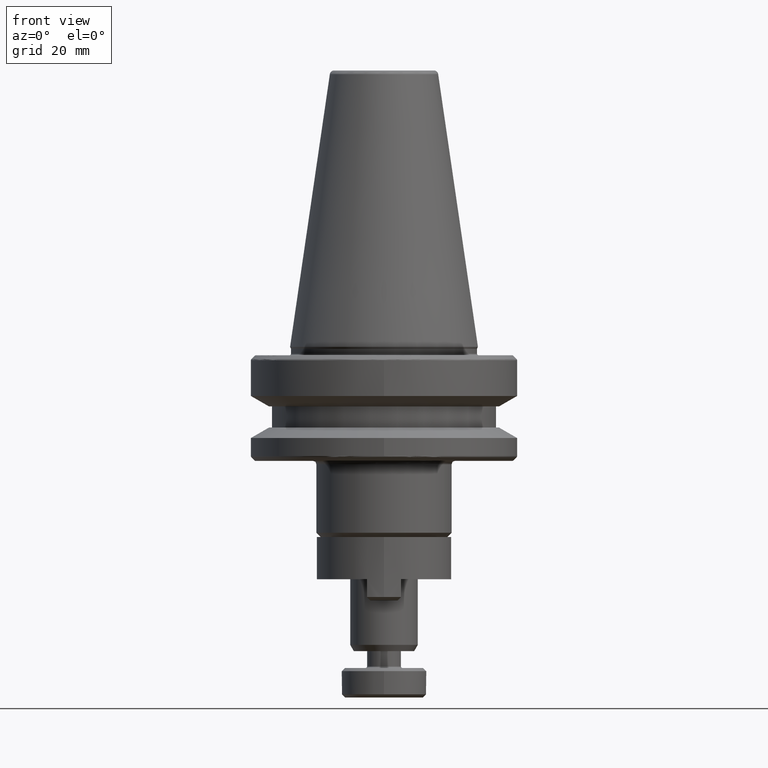
[diagram: clean part render]
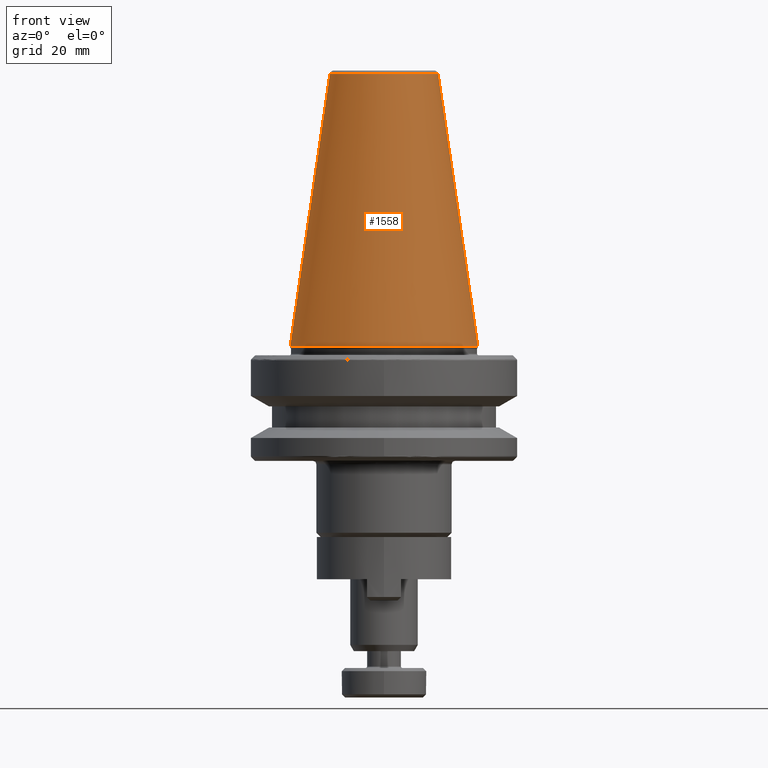
[diagram: same view with one face highlighted and labeled with its STEP entity id]
A machine part, front view. The second image highlights one B-rep face of the part: STEP entity #1558.
In plain terms, the highlighted conical surface has half-angle 8.297 deg.
Its self-contained STEP definition (entity closure, byte-faithful):
#9 = AXIS2_PLACEMENT_3D ( 'NONE', #195, #512, #3540 ) ;
#32 = CONICAL_SURFACE ( 'NONE', #226, 12.81219950700000300, 0.1448138465489547400 ) ;
#39 = EDGE_CURVE ( 'NONE', #1925, #1515, #1289, .T. ) ;
#121 = FACE_OUTER_BOUND ( 'NONE', #1241, .T. ) ;
#173 = CARTESIAN_POINT ( 'NONE',  ( -12.81219950696881500, -1.150453881886354600E-009, 64.54430822699541200 ) ) ;
#192 = EDGE_CURVE ( 'NONE', #3235, #1515, #3267, .T. ) ;
#195 = CARTESIAN_POINT ( 'NONE',  ( 0.0000000000000000000, 0.0000000000000000000, 0.0000000000000000000 ) ) ;
#226 = AXIS2_PLACEMENT_3D ( 'NONE', #3286, #2684, #2058 ) ;
#267 = DIRECTION ( 'NONE',  ( -1.000000000000000000, 0.0000000000000000000, 2.166339635943424900E-015 ) ) ;
#361 = CARTESIAN_POINT ( 'NONE',  ( 12.81219950696690200, -3.941739068562204500E-009, 64.54430822700854300 ) ) ;
#473 = VECTOR ( 'NONE', #1286, 1000.000000000000000 ) ;
#512 = DIRECTION ( 'NONE',  ( 0.0000000000000000000, 0.0000000000000000000, 1.000000000000000000 ) ) ;
#603 = VECTOR ( 'NONE', #1297, 1000.000000000000000 ) ;
#981 = CARTESIAN_POINT ( 'NONE',  ( -12.81219950700000300, 0.0000000000000000000, 64.54430822700000200 ) ) ;
#1214 = ORIENTED_EDGE ( 'NONE', *, *, #192, .T. ) ;
#1241 = EDGE_LOOP ( 'NONE', ( #3124, #3265, #1413, #1214 ) ) ;
#1286 = DIRECTION ( 'NONE',  ( 0.1443082272688266400, 1.767266086153973400E-017, -0.9895327864919528600 ) ) ;
#1289 = LINE ( 'NONE', #2504, #473 ) ;
#1297 = DIRECTION ( 'NONE',  ( -0.1443082272688266400, 0.0000000000000000000, -0.9895327864919528600 ) ) ;
#1413 = ORIENTED_EDGE ( 'NONE', *, *, #2934, .T. ) ;
#1515 = VERTEX_POINT ( 'NONE', #2668 ) ;
#1558 = ADVANCED_FACE ( 'NONE', ( #121 ), #32, .T. ) ;
#1705 = EDGE_CURVE ( 'NONE', #2595, #1925, #3650, .T. ) ;
#1925 = VERTEX_POINT ( 'NONE', #361 ) ;
#2058 = DIRECTION ( 'NONE',  ( -1.000000000000000000, 0.0000000000000000000, 0.0000000000000000000 ) ) ;
#2100 = DIRECTION ( 'NONE',  ( -0.0000000000000000000, -0.0000000000000000000, 1.000000000000000000 ) ) ;
#2504 = CARTESIAN_POINT ( 'NONE',  ( 12.81219950700000300, 1.569041911628485000E-015, 64.54430822700000200 ) ) ;
#2595 = VERTEX_POINT ( 'NONE', #173 ) ;
#2668 = CARTESIAN_POINT ( 'NONE',  ( 22.22499999999999800, 2.721777511104992100E-015, 0.0000000000000000000 ) ) ;
#2684 = DIRECTION ( 'NONE',  ( 0.0000000000000000000, 0.0000000000000000000, -1.000000000000000000 ) ) ;
#2934 = EDGE_CURVE ( 'NONE', #2595, #3235, #3873, .T. ) ;
#3124 = ORIENTED_EDGE ( 'NONE', *, *, #39, .F. ) ;
#3235 = VERTEX_POINT ( 'NONE', #3242 ) ;
#3242 = CARTESIAN_POINT ( 'NONE',  ( -22.22499999999999800, 0.0000000000000000000, 0.0000000000000000000 ) ) ;
#3265 = ORIENTED_EDGE ( 'NONE', *, *, #1705, .F. ) ;
#3267 = CIRCLE ( 'NONE', #9, 22.22499999999999800 ) ;
#3286 = CARTESIAN_POINT ( 'NONE',  ( 0.0000000000000000000, 0.0000000000000000000, 64.54430822700000200 ) ) ;
#3540 = DIRECTION ( 'NONE',  ( 1.000000000000000000, 0.0000000000000000000, 0.0000000000000000000 ) ) ;
#3650 = CIRCLE ( 'NONE', #3727, 12.81219950700000300 ) ;
#3727 = AXIS2_PLACEMENT_3D ( 'NONE', #3945, #2100, #267 ) ;
#3873 = LINE ( 'NONE', #981, #603 ) ;
#3945 = CARTESIAN_POINT ( 'NONE',  ( 0.0000000000000000000, 0.0000000000000000000, 64.54430822699997300 ) ) ;